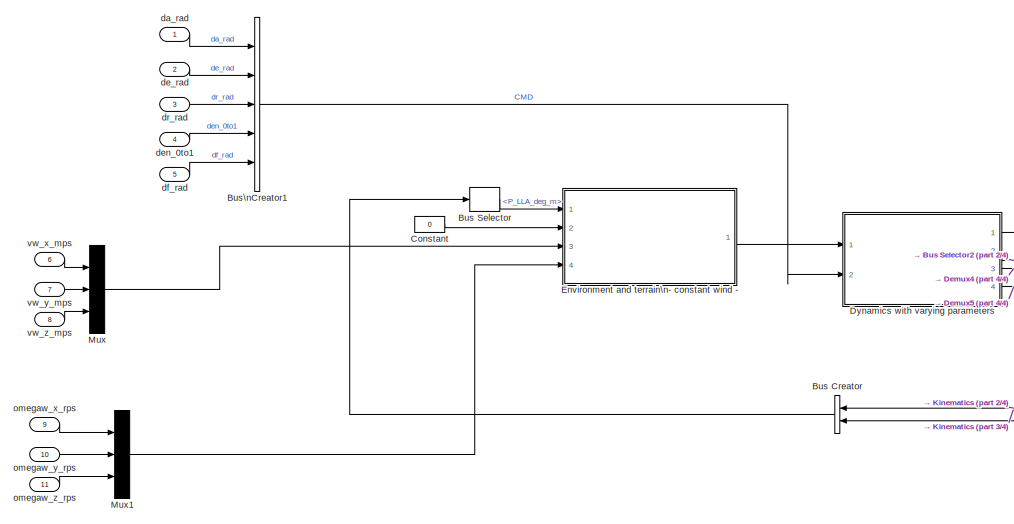
[diagram: root canvas - part 1/4, top left region]
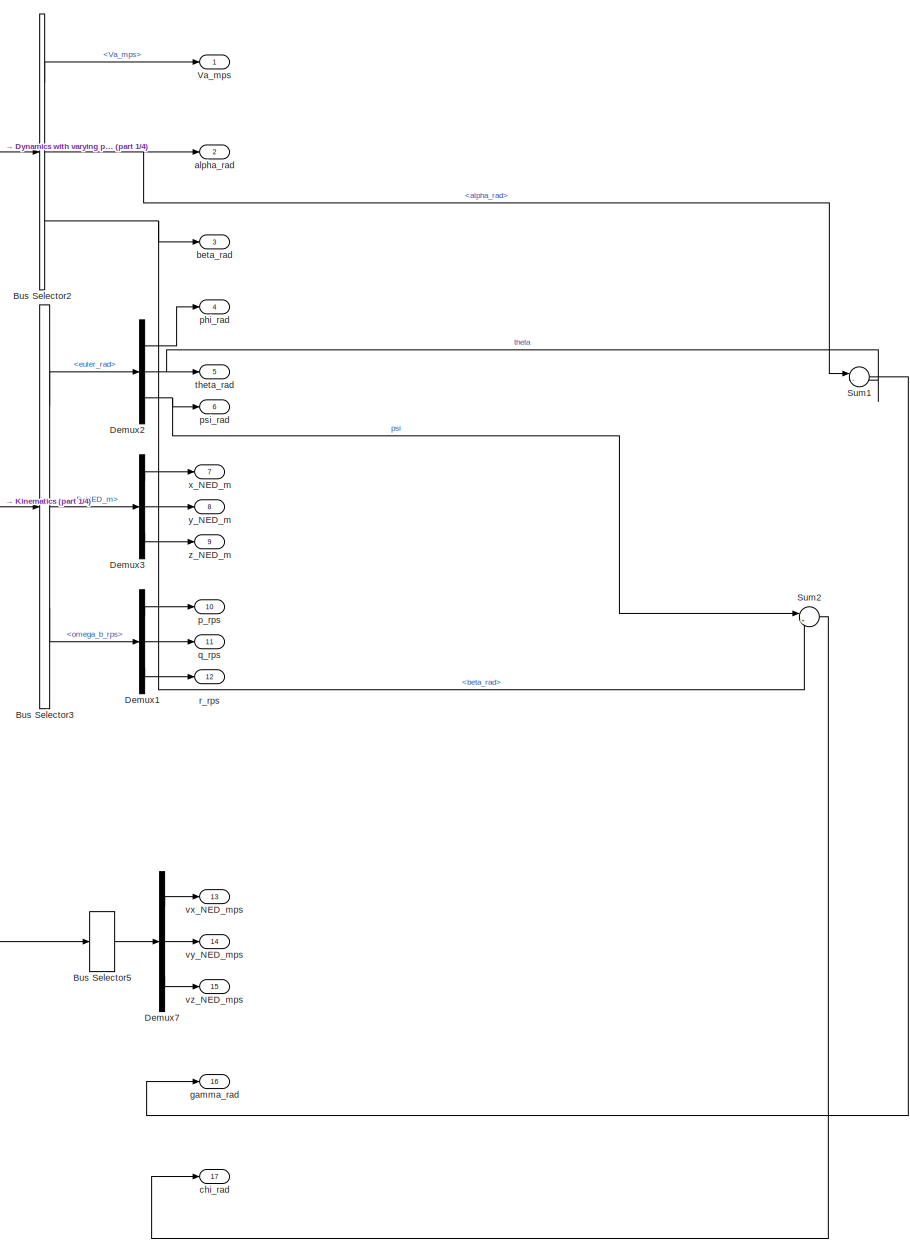
[diagram: root canvas - part 2/4, middle right region]
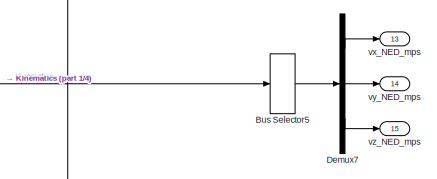
[diagram: root canvas - part 3/4, central region]
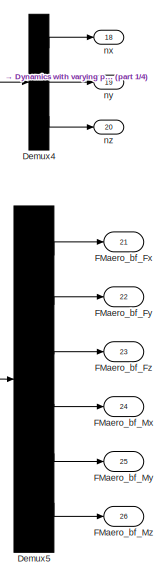
[diagram: root canvas - part 4/4, bottom right region]
MODEL uavsimblockset_trimModel_Cularis_turbulentAtmosphere
KIND model
BLOCK [BusCreator] Bus Creator
  DisplayOption = bar
  InheritFromInputs = on
  Inputs = 2
  Ports = [2, 1]
  SID = 1032
BLOCK [BusSelector] Bus Selector
  OutputSignals = Kinematics.Position.P_LLA_deg_m
  Ports = [1, 1]
  SID = 1057
BLOCK [BusSelector] Bus Selector2
  OutputSignals = Va_mps,alpha_rad,beta_rad
  Ports = [1, 3]
  SID = 1139
BLOCK [BusSelector] Bus Selector3
  OutputSignals = Attitude.euler_rad,Position.P_NED_m,RotationalVelocity.omega_b_rps
  Ports = [1, 3]
  SID = 1140
BLOCK [BusSelector] Bus Selector5
  OutputAsBus = on
  OutputSignals = Velocity.Vground_NED_mps
  Ports = [1, 1]
  SID = 1141
BLOCK [BusCreator] Bus\nCreator1
  DisplayOption = bar
  InheritFromInputs = on
  Inputs = 5
  NonVirtualBus = on
  OutDataTypeStr = Bus: CMD
  Ports = [5, 1]
  SID = 70
BLOCK [Constant] Constant
  SID = 1054
  Value = 0
BLOCK [Demux] Demux1
  DisplayOption = bar
  Outputs = 3
  Ports = [1, 3]
  SID = 1142
BLOCK [Demux] Demux2
  DisplayOption = bar
  Outputs = 3
  Ports = [1, 3]
  SID = 1143
BLOCK [Demux] Demux3
  DisplayOption = bar
  Outputs = 3
  Ports = [1, 3]
  SID = 1144
BLOCK [Demux] Demux4
  DisplayOption = bar
  Outputs = 3
  Ports = [1, 3]
  SID = 1174
BLOCK [Demux] Demux5
  DisplayOption = bar
  Outputs = 6
  Ports = [1, 6]
  SID = 1184
BLOCK [Demux] Demux7
  DisplayOption = bar
  Outputs = 3
  Ports = [1, 3]
  SID = 1145
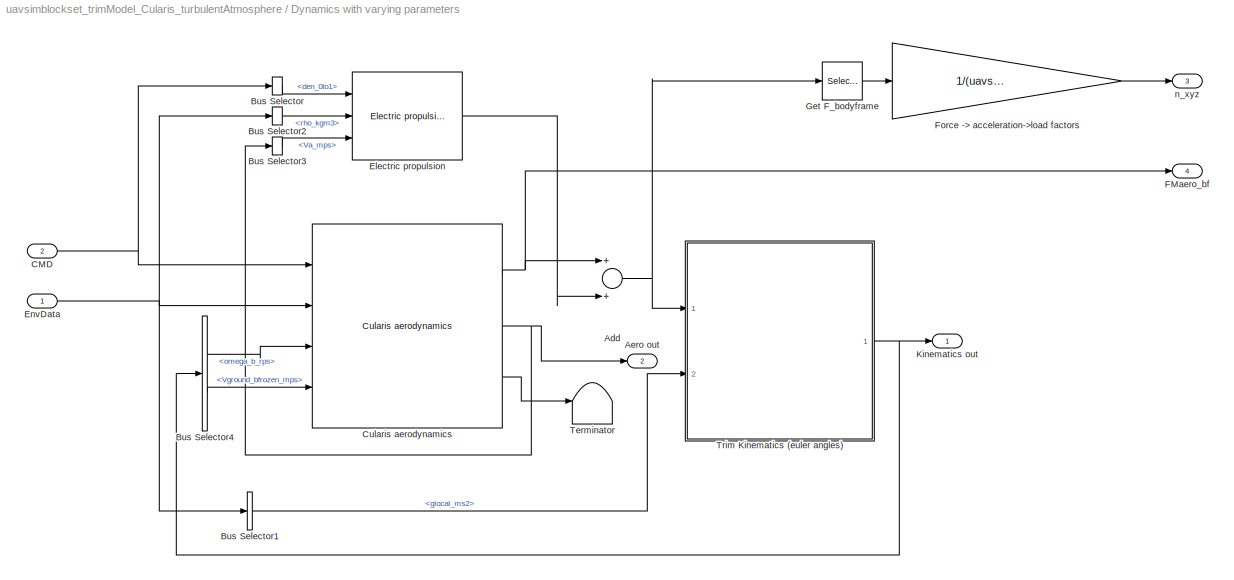
BLOCK [SubSystem] Dynamics with varying parameters
  Ports = [2, 4]
  RequestExecContextInheritance = off
  SID = 1067
  Variant = off
BLOCK [Sum] Dynamics with varying parameters/Add
  InputSameDT = off
  OutDataTypeStr = Inherit: Inherit via internal rule
  Ports = [2, 1]
  SID = 1070
  SaturateOnIntegerOverflow = off
BLOCK [Outport] Dynamics with varying parameters/Aero out
  IconDisplay = Port number
  OutDataTypeStr = Bus: Aero
  Port = 2
  SID = 1077
BLOCK [BusSelector] Dynamics with varying parameters/Bus Selector
  OutputSignals = den_0to1
  Ports = [1, 1]
  SID = 1125
BLOCK [BusSelector] Dynamics with varying parameters/Bus Selector1
  OutputSignals = glocal_ms2
  Ports = [1, 1]
  SID = 1072
BLOCK [BusSelector] Dynamics with varying parameters/Bus Selector2
  OutputSignals = rho_kgm3
  Ports = [1, 1]
  SID = 1126
BLOCK [BusSelector] Dynamics with varying parameters/Bus Selector3
  OutputSignals = Va_mps
  Ports = [1, 1]
  SID = 1127
BLOCK [BusSelector] Dynamics with varying parameters/Bus Selector4
  OutputSignals = RotationalVelocity.omega_b_rps,Velocity.Vground_bfrozen_mps
  Ports = [1, 2]
  SID = 1073
BLOCK [Inport] Dynamics with varying parameters/CMD
  IconDisplay = Port number
  OutDataTypeStr = Bus: CMD
  Port = 2
  SID = 1069
BLOCK [Reference] Dynamics with varying parameters/Cularis aerodynamics  REF=uavsimBlockset_Cularis_Aerandpropulsion/Cularis aerodynamics
  FunctionWithSeparateData = off
  GeneratePreprocessorConditionals = off
  Ports = [4, 3]
  SID = 1123
  ShowPortLabels = FromPortIcon
  SourceBlock = uavsimBlockset_Cularis_Aerandpropulsion/Cularis aerodynamics
  SystemSampleTime = -1
BLOCK [Reference] Dynamics with varying parameters/Electric propulsion  REF=uavsimBlockset_ElectricPropulsion/Electric propulsion
  Ports = [3, 1]
  SID = 1124
  SourceBlock = uavsimBlockset_ElectricPropulsion/Electric propulsion
  mask_C_prop = uavsim.cularis.C_prop
  mask_S_prop = uavsim.cularis.S_prop
  mask_k_motor = uavsim.cularis.k_motor
BLOCK [Inport] Dynamics with varying parameters/EnvData
  IconDisplay = Port number
  OutDataTypeStr = Bus: Environment
  SID = 1068
BLOCK [Outport] Dynamics with varying parameters/FMaero_bf
  IconDisplay = Port number
  Port = 4
  PortDimensions = 6
  SID = 1177
BLOCK [Gain] Dynamics with varying parameters/Force -> acceleration->load factors
  Gain = 1/(uavsim.cularis.mass * 9.81)
  OutDataTypeStr = Inherit: Inherit via internal rule
  ParamDataTypeStr = Inherit: Inherit via internal rule
  SID = 1086
  SaturateOnIntegerOverflow = off
BLOCK [Selector] Dynamics with varying parameters/Get F_bodyframe
  IndexOptions = Index vector (dialog)
  Indices = 1:3
  InputPortWidth = 6
  OutputSizes = 1
  Ports = [1, 1]
  SID = 1087
BLOCK [Outport] Dynamics with varying parameters/Kinematics out
  IconDisplay = Port number
  OutDataTypeStr = Bus: Kinematics
  SID = 1076
BLOCK [Terminator] Dynamics with varying parameters/Terminator
  SID = 1074
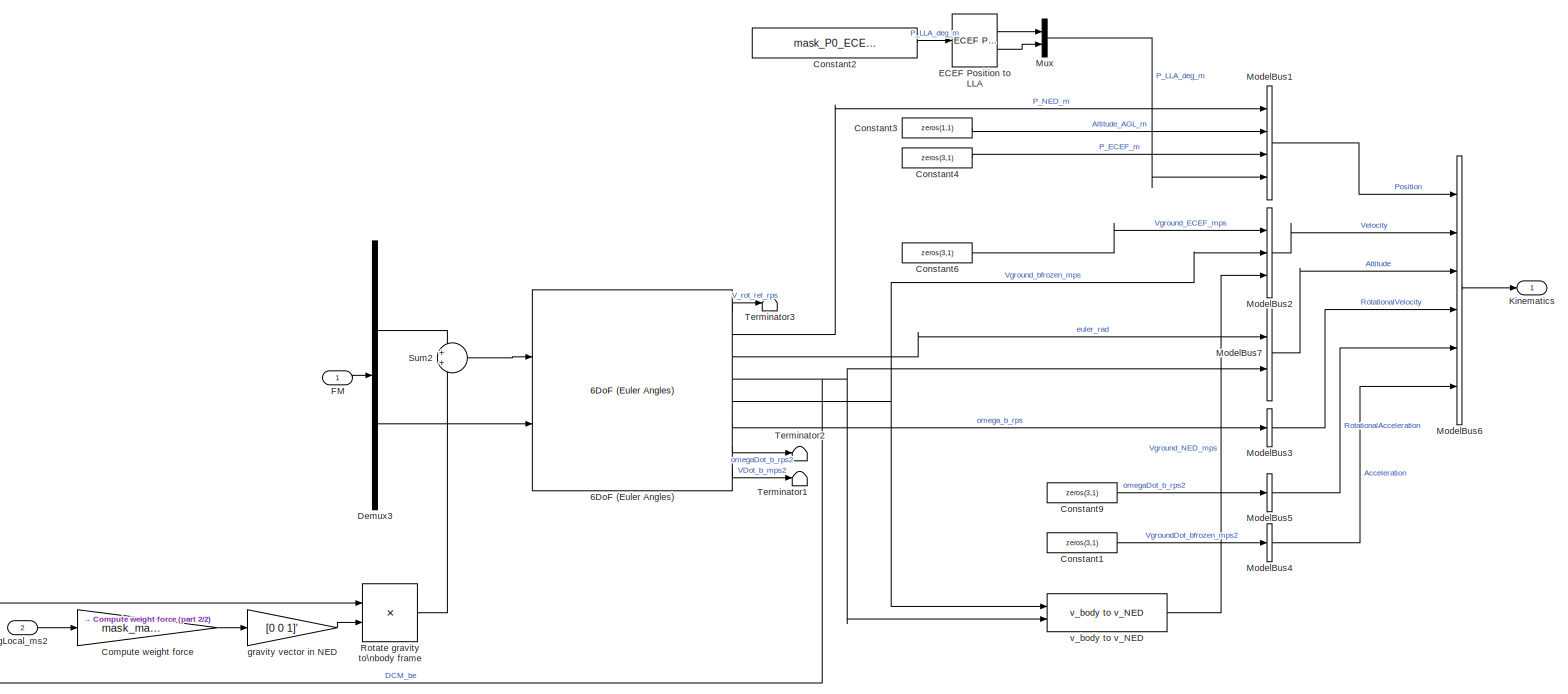
[diagram: Dynamics with varying parameters/Trim Kinematics (euler angles) - part 1/2, most of the canvas]
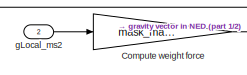
[diagram: Dynamics with varying parameters/Trim Kinematics (euler angles) - part 2/2, bottom left region]
BLOCK [SubSystem] Dynamics with varying parameters/Trim Kinematics (euler angles)
  AncestorBlock = uavsimblockset_TrimKinematics/Trim Kinematics (euler angles)
  Ports = [2, 1]
  RequestExecContextInheritance = off
  SID = 1075
  Variant = off
BLOCK [Reference] Dynamics with varying parameters/Trim Kinematics (euler angles)/6DoF (Euler Angles)  REF=aerolibobsolete/6DoF (Euler Angles)
  Ports = [2, 8]
  SID = 1075:3236
  SourceBlock = aerolibobsolete/6DoF (Euler Angles)
  SourceType = 6DoF EoM (Body Axis)
  Vm_0 = mask_uvw0
  eul_0 = mask_phithetapsi0
  inertia = mask_inertia
  inertia_e = eye(3)
  inertia_f = 2*eye(3)
  k_quat = 1.0
  mass_0 = mask_mass
  mass_e = 0.5
  mass_f = 2.0
  mtype = Fixed
  pm_0 = mask_omega0
  rep = Euler Angles
  units = Metric (MKS)
  xme_0 = mask_P0_ECEF_m
BLOCK [Gain] Dynamics with varying parameters/Trim Kinematics (euler angles)/Compute weight force
  Gain = mask_mass
  OutDataTypeStr = Inherit: Inherit via internal rule
  ParamDataTypeStr = Inherit: Inherit via internal rule
  SID = 1075:3260
  SaturateOnIntegerOverflow = off
BLOCK [Constant] Dynamics with varying parameters/Trim Kinematics (euler angles)/Constant1
  SID = 1075:3237
  SampleTime = -1
  Value = zeros(3,1)
BLOCK [Constant] Dynamics with varying parameters/Trim Kinematics (euler angles)/Constant2
  SID = 1075:3238
  SampleTime = -1
  Value = mask_P0_ECEF_m
BLOCK [Constant] Dynamics with varying parameters/Trim Kinematics (euler angles)/Constant3
  SID = 1075:3239
  SampleTime = -1
  Value = zeros(1,1)
BLOCK [Constant] Dynamics with varying parameters/Trim Kinematics (euler angles)/Constant4
  SID = 1075:3240
  SampleTime = -1
  Value = zeros(3,1)
BLOCK [Constant] Dynamics with varying parameters/Trim Kinematics (euler angles)/Constant6
  SID = 1075:3242
  SampleTime = -1
  Value = zeros(3,1)
BLOCK [Constant] Dynamics with varying parameters/Trim Kinematics (euler angles)/Constant9
  SID = 1075:3244
  SampleTime = -1
  Value = zeros(3,1)
BLOCK [Demux] Dynamics with varying parameters/Trim Kinematics (euler angles)/Demux3
  Outputs = [3,3]
  Ports = [1, 2]
  SID = 1075:3245
BLOCK [Reference] Dynamics with varying parameters/Trim Kinematics (euler angles)/ECEF Position to LLA  REF=aerolibtransform2/ECEF Position to LLA
  F = 1/298.257223563
  Ports = [1, 2]
  R = 6378137
  SID = 1075:3905
  SourceBlock = aerolibtransform2/ECEF Position to LLA
  SourceType = ECEF to LLA
  ptype = Earth (WGS84)
  units = Metric (MKS)
BLOCK [Inport] Dynamics with varying parameters/Trim Kinematics (euler angles)/FM
  IconDisplay = Port number
  SID = 1075:3234
BLOCK [Outport] Dynamics with varying parameters/Trim Kinematics (euler angles)/Kinematics
  IconDisplay = Port number
  OutDataTypeStr = Bus: Kinematics
  SID = 1075:3258
BLOCK [BusCreator] Dynamics with varying parameters/Trim Kinematics (euler angles)/ModelBus1
  DisplayOption = bar
  InheritFromInputs = on
  Inputs = 'P_NED_m','Altitude_AGL_m','P_ECEF_m','P_LLA_deg_m'
  NonVirtualBus = on
  OutDataTypeStr = Bus: Position
  Ports = [4, 1]
  SID = 1075:3246
BLOCK [BusCreator] Dynamics with varying parameters/Trim Kinematics (euler angles)/ModelBus2
  DisplayOption = bar
  InheritFromInputs = on
  Inputs = 3
  NonVirtualBus = on
  OutDataTypeStr = Bus: Velocity
  Ports = [3, 1]
  SID = 1075:3247
BLOCK [BusCreator] Dynamics with varying parameters/Trim Kinematics (euler angles)/ModelBus3
  DisplayOption = bar
  InheritFromInputs = on
  Inputs = 'omega_b_rps'
  NonVirtualBus = on
  OutDataTypeStr = Bus: RotationalVelocity
  Ports = [1, 1]
  SID = 1075:3248
BLOCK [BusCreator] Dynamics with varying parameters/Trim Kinematics (euler angles)/ModelBus4
  DisplayOption = bar
  InheritFromInputs = on
  Inputs = 1
  NonVirtualBus = on
  OutDataTypeStr = Bus: Acceleration
  Ports = [1, 1]
  SID = 1075:3249
BLOCK [BusCreator] Dynamics with varying parameters/Trim Kinematics (euler angles)/ModelBus5
  DisplayOption = bar
  InheritFromInputs = on
  Inputs = 'omegaDot_b_rps2'
  NonVirtualBus = on
  OutDataTypeStr = Bus: RotationalAcceleration
  Ports = [1, 1]
  SID = 1075:3250
BLOCK [BusCreator] Dynamics with varying parameters/Trim Kinematics (euler angles)/ModelBus6
  DisplayOption = bar
  InheritFromInputs = on
  Inputs = 6
  OutDataTypeStr = Bus: Kinematics
  Ports = [6, 1]
  SID = 1075:3251
BLOCK [BusCreator] Dynamics with varying parameters/Trim Kinematics (euler angles)/ModelBus7
  DisplayOption = bar
  InheritFromInputs = on
  Inputs = 'euler_rad','DCM_be'
  NonVirtualBus = on
  OutDataTypeStr = Bus: Attitude
  Ports = [2, 1]
  SID = 1075:3252
BLOCK [Mux] Dynamics with varying parameters/Trim Kinematics (euler angles)/Mux
  DisplayOption = bar
  Inputs = 2
  Ports = [2, 1]
  SID = 1075:3906
BLOCK [Product] Dynamics with varying parameters/Trim Kinematics (euler angles)/Rotate gravity to\nbody frame
  InputSameDT = off
  Multiplication = Matrix(*)
  OutDataTypeStr = Inherit: Inherit via internal rule
  Ports = [2, 1]
  RndMeth = Floor
  SID = 1075:3261
  SaturateOnIntegerOverflow = off
BLOCK [Sum] Dynamics with varying parameters/Trim Kinematics (euler angles)/Sum2
  IconShape = round
  Ports = [2, 1]
  SID = 1075:3253
BLOCK [Terminator] Dynamics with varying parameters/Trim Kinematics (euler angles)/Terminator1
  SID = 1075:3254
BLOCK [Terminator] Dynamics with varying parameters/Trim Kinematics (euler angles)/Terminator2
  SID = 1075:3255
BLOCK [Terminator] Dynamics with varying parameters/Trim Kinematics (euler angles)/Terminator3
  SID = 1075:3256
BLOCK [Inport] Dynamics with varying parameters/Trim Kinematics (euler angles)/gLocal_ms2
  IconDisplay = Port number
  Port = 2
  SID = 1075:3235
BLOCK [Gain] Dynamics with varying parameters/Trim Kinematics (euler angles)/gravity vector in NED
  Gain = [0 0 1]'
  OutDataTypeStr = Inherit: Inherit via internal rule
  ParamDataTypeStr = Inherit: Inherit via internal rule
  SID = 1075:3262
  SaturateOnIntegerOverflow = off
BLOCK [Reference] Dynamics with varying parameters/Trim Kinematics (euler angles)/v_body to v_NED  REF=uavsimblockset_vbody2vNED/v_body to v_NED
  Ports = [2, 1]
  SID = 1075:3257
  SourceBlock = uavsimblockset_vbody2vNED/v_body to v_NED
  SourceType = SubSystem
BLOCK [Outport] Dynamics with varying parameters/n_xyz
  IconDisplay = Port number
  Port = 3
  PortDimensions = 3
  SID = 1088
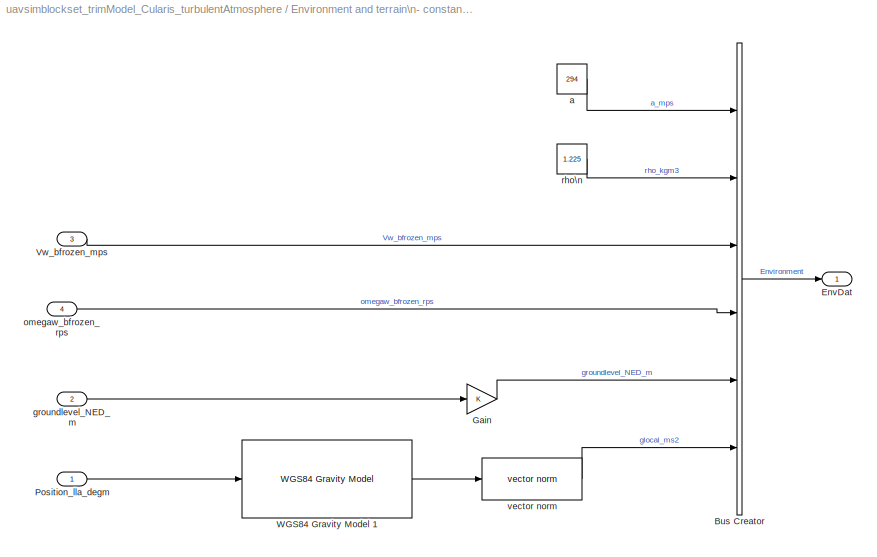
BLOCK [SubSystem] Environment and terrain\n- constant wind -
  AncestorBlock = uavsimBlockset_Environment_calmAtmosphere/Environment and terrain\n- calm atmosphere -
  Ports = [4, 1]
  RequestExecContextInheritance = off
  SID = 1058
  Variant = off
BLOCK [BusCreator] Environment and terrain\n- constant wind -/Bus Creator
  DisplayOption = bar
  InheritFromInputs = on
  Inputs = 6
  NonVirtualBus = on
  OutDataTypeStr = Bus: Environment
  Ports = [6, 1]
  SID = 1058:1771
BLOCK [Outport] Environment and terrain\n- constant wind -/EnvDat
  IconDisplay = Port number
  OutDataTypeStr = Bus: Environment
  SID = 1058:1793
BLOCK [Gain] Environment and terrain\n- constant wind -/Gain
  OutDataTypeStr = Inherit: Inherit via internal rule
  ParamDataTypeStr = Inherit: Inherit via internal rule
  SID = 1058:4461
  SaturateOnIntegerOverflow = off
BLOCK [Inport] Environment and terrain\n- constant wind -/Position_lla_degm
  IconDisplay = Port number
  SID = 1058:1809
BLOCK [Inport] Environment and terrain\n- constant wind -/Vw_bfrozen_mps
  IconDisplay = Port number
  Port = 3
  SID = 1058:4462
BLOCK [Reference] Environment and terrain\n- constant wind -/WGS84 Gravity Model 1  REF=aerolibgravity2/WGS84 Gravity Model 
  Ports = [1, 1]
  SID = 1058:1784
  SourceBlock = aerolibgravity2/WGS84 Gravity Model
  SourceType = WGS84 Gravity Model 3D
  action = Warning
  day = 10
  jd_loc = off
  model = WGS84 Taylor Series
  month = October
  no_atmos = on
  no_centrifugal = on
  precessing = on
  units = Metric (MKS)
  year = 2004
BLOCK [Constant] Environment and terrain\n- constant wind -/a
  SID = 1058:1785
  Value = 294
BLOCK [Inport] Environment and terrain\n- constant wind -/groundlevel_NED_m
  IconDisplay = Port number
  Port = 2
  SID = 1058:4018
BLOCK [Inport] Environment and terrain\n- constant wind -/omegaw_bfrozen_rps
  IconDisplay = Port number
  Port = 4
  SID = 1058:4463
BLOCK [Constant] Environment and terrain\n- constant wind -/rho\n
  SID = 1058:1789
  Value = 1.225
BLOCK [Reference] Environment and terrain\n- constant wind -/vector norm  REF=uavsimBlockset_VectorNorm/vector norm
  Ports = [1, 1]
  SID = 1058:1858
  SourceBlock = uavsimBlockset_VectorNorm/vector norm
  SourceType = SubSystem
BLOCK [Outport] FMaero_bf_Fx
  IconDisplay = Port number
  Port = 21
  PortDimensions = 1
  SID = 1178
BLOCK [Outport] FMaero_bf_Fy
  IconDisplay = Port number
  Port = 22
  PortDimensions = 1
  SID = 1179
BLOCK [Outport] FMaero_bf_Fz
  IconDisplay = Port number
  Port = 23
  PortDimensions = 1
  SID = 1180
BLOCK [Outport] FMaero_bf_Mx
  IconDisplay = Port number
  Port = 24
  PortDimensions = 1
  SID = 1181
BLOCK [Outport] FMaero_bf_My
  IconDisplay = Port number
  Port = 25
  PortDimensions = 1
  SID = 1182
BLOCK [Outport] FMaero_bf_Mz
  IconDisplay = Port number
  Port = 26
  PortDimensions = 1
  SID = 1183
BLOCK [Mux] Mux
  DisplayOption = bar
  Inputs = 3
  Ports = [3, 1]
  SID = 1137
BLOCK [Mux] Mux1
  DisplayOption = bar
  Inputs = 3
  Ports = [3, 1]
  SID = 1138
BLOCK [Sum] Sum1
  IconShape = round
  InputSameDT = off
  Inputs = |-+
  OutDataTypeStr = Inherit: Inherit via internal rule
  Ports = [2, 1]
  SID = 1146
  SaturateOnIntegerOverflow = off
BLOCK [Sum] Sum2
  IconShape = round
  InputSameDT = off
  Inputs = |++
  OutDataTypeStr = Inherit: Inherit via internal rule
  Ports = [2, 1]
  SID = 1147
  SaturateOnIntegerOverflow = off
BLOCK [Outport] Va_mps
  IconDisplay = Port number
  SID = 1148
BLOCK [Outport] alpha_rad
  IconDisplay = Port number
  Port = 2
  SID = 1149
BLOCK [Outport] beta_rad
  IconDisplay = Port number
  Port = 3
  SID = 1150
BLOCK [Outport] chi_rad
  IconDisplay = Port number
  Port = 17
  SID = 1165
BLOCK [Inport] da_rad
  IconDisplay = Port number
  SID = 82
BLOCK [Inport] de_rad
  IconDisplay = Port number
  Port = 2
  SID = 83
BLOCK [Inport] den_0to1
  IconDisplay = Port number
  Port = 4
  SID = 85
BLOCK [Inport] df_rad
  IconDisplay = Port number
  Port = 5
  SID = 1028
BLOCK [Inport] dr_rad
  IconDisplay = Port number
  Port = 3
  SID = 84
BLOCK [Outport] gamma_rad
  IconDisplay = Port number
  Port = 16
  SID = 1164
BLOCK [Outport] nx
  IconDisplay = Port number
  Port = 18
  SID = 1169
BLOCK [Outport] ny
  IconDisplay = Port number
  Port = 19
  SID = 1172
BLOCK [Outport] nz
  IconDisplay = Port number
  Port = 20
  SID = 1173
BLOCK [Inport] omegaw_x_rps
  IconDisplay = Port number
  Port = 9
  PortDimensions = 1
  SID = 1134
BLOCK [Inport] omegaw_y_rps
  IconDisplay = Port number
  Port = 10
  PortDimensions = 1
  SID = 1135
BLOCK [Inport] omegaw_z_rps
  IconDisplay = Port number
  Port = 11
  PortDimensions = 1
  SID = 1136
BLOCK [Outport] p_rps
  IconDisplay = Port number
  Port = 10
  SID = 1157
BLOCK [Outport] phi_rad
  IconDisplay = Port number
  Port = 4
  SID = 1151
BLOCK [Outport] psi_rad
  IconDisplay = Port number
  Port = 6
  SID = 1153
BLOCK [Outport] q_rps
  IconDisplay = Port number
  Port = 11
  SID = 1158
BLOCK [Outport] r_rps
  IconDisplay = Port number
  Port = 12
  SID = 1159
BLOCK [Outport] theta_rad
  IconDisplay = Port number
  Port = 5
  SID = 1152
BLOCK [Inport] vw_x_mps
  IconDisplay = Port number
  Port = 6
  PortDimensions = 1
  SID = 1131
BLOCK [Inport] vw_y_mps
  IconDisplay = Port number
  Port = 7
  PortDimensions = 1
  SID = 1132
BLOCK [Inport] vw_z_mps
  IconDisplay = Port number
  Port = 8
  PortDimensions = 1
  SID = 1133
BLOCK [Outport] vx_NED_mps
  IconDisplay = Port number
  Port = 13
  SID = 1161
BLOCK [Outport] vy_NED_mps
  IconDisplay = Port number
  Port = 14
  SID = 1162
BLOCK [Outport] vz_NED_mps
  IconDisplay = Port number
  Port = 15
  SID = 1163
BLOCK [Outport] x_NED_m
  IconDisplay = Port number
  Port = 7
  SID = 1154
BLOCK [Outport] y_NED_m
  IconDisplay = Port number
  Port = 8
  SID = 1155
BLOCK [Outport] z_NED_m
  IconDisplay = Port number
  Port = 9
  SID = 1156
LINE Bus Creator:1 -> Bus Selector:1
LINE Bus Selector2:1 -> Va_mps:1
NET Bus Selector2:2 -> Sum1:1, alpha_rad:1
NET Bus Selector2:3 -> Sum2:2, beta_rad:1
LINE Bus Selector3:1 -> Demux2:1
LINE Bus Selector3:2 -> Demux3:1
LINE Bus Selector3:3 -> Demux1:1
LINE Bus Selector5:1 -> Demux7:1
LINE Bus Selector:1 -> Environment and terrain\n- constant wind -:1
LINE Bus\nCreator1:1 -> Dynamics with varying parameters:2
LINE Constant:1 -> Environment and terrain\n- constant wind -:2
LINE Demux1:1 -> p_rps:1
LINE Demux1:2 -> q_rps:1
LINE Demux1:3 -> r_rps:1
LINE Demux2:1 -> phi_rad:1
NET Demux2:2 -> Sum1:2, theta_rad:1
NET Demux2:3 -> Sum2:1, psi_rad:1
LINE Demux3:1 -> x_NED_m:1
LINE Demux3:2 -> y_NED_m:1
LINE Demux3:3 -> z_NED_m:1
LINE Demux4:1 -> nx:1
LINE Demux4:2 -> ny:1
LINE Demux4:3 -> nz:1
LINE Demux5:1 -> FMaero_bf_Fx:1
LINE Demux5:2 -> FMaero_bf_Fy:1
LINE Demux5:3 -> FMaero_bf_Fz:1
LINE Demux5:4 -> FMaero_bf_Mx:1
LINE Demux5:5 -> FMaero_bf_My:1
LINE Demux5:6 -> FMaero_bf_Mz:1
LINE Demux7:1 -> vx_NED_mps:1
LINE Demux7:2 -> vy_NED_mps:1
LINE Demux7:3 -> vz_NED_mps:1
NET Dynamics with varying parameters/Add:1 -> Dynamics with varying parameters/Get F_bodyframe:1, Dynamics with varying parameters/Trim Kinematics (euler angles):1
LINE Dynamics with varying parameters/Bus Selector1:1 -> Dynamics with varying parameters/Trim Kinematics (euler angles):2
LINE Dynamics with varying parameters/Bus Selector2:1 -> Dynamics with varying parameters/Electric propulsion:2
LINE Dynamics with varying parameters/Bus Selector3:1 -> Dynamics with varying parameters/Electric propulsion:3
LINE Dynamics with varying parameters/Bus Selector4:1 -> Dynamics with varying parameters/Cularis aerodynamics:3
LINE Dynamics with varying parameters/Bus Selector4:2 -> Dynamics with varying parameters/Cularis aerodynamics:4
LINE Dynamics with varying parameters/Bus Selector:1 -> Dynamics with varying parameters/Electric propulsion:1
NET Dynamics with varying parameters/CMD:1 -> Dynamics with varying parameters/Bus Selector:1, Dynamics with varying parameters/Cularis aerodynamics:1
NET Dynamics with varying parameters/Cularis aerodynamics:1 -> Dynamics with varying parameters/Add:1, Dynamics with varying parameters/FMaero_bf:1
NET Dynamics with varying parameters/Cularis aerodynamics:2 -> Dynamics with varying parameters/Aero out:1, Dynamics with varying parameters/Bus Selector3:1
LINE Dynamics with varying parameters/Cularis aerodynamics:3 -> Dynamics with varying parameters/Terminator:1
LINE Dynamics with varying parameters/Electric propulsion:1 -> Dynamics with varying parameters/Add:2
NET Dynamics with varying parameters/EnvData:1 -> Dynamics with varying parameters/Bus Selector1:1, Dynamics with varying parameters/Bus Selector2:1, Dynamics with varying parameters/Cularis aerodynamics:2
LINE Dynamics with varying parameters/Force -> acceleration->load factors:1 -> Dynamics with varying parameters/n_xyz:1
LINE Dynamics with varying parameters/Get F_bodyframe:1 -> Dynamics with varying parameters/Force -> acceleration->load factors:1
LINE Dynamics with varying parameters/Trim Kinematics (euler angles)/6DoF (Euler Angles):1 -> Dynamics with varying parameters/Trim Kinematics (euler angles)/Terminator3:1
LINE Dynamics with varying parameters/Trim Kinematics (euler angles)/6DoF (Euler Angles):2 -> Dynamics with varying parameters/Trim Kinematics (euler angles)/ModelBus1:1
LINE Dynamics with varying parameters/Trim Kinematics (euler angles)/6DoF (Euler Angles):3 -> Dynamics with varying parameters/Trim Kinematics (euler angles)/ModelBus7:1
NET Dynamics with varying parameters/Trim Kinematics (euler angles)/6DoF (Euler Angles):4 -> Dynamics with varying parameters/Trim Kinematics (euler angles)/ModelBus7:2, Dynamics with varying parameters/Trim Kinematics (euler angles)/Rotate gravity to\nbody frame:1, Dynamics with varying parameters/Trim Kinematics (euler angles)/v_body to v_NED:2
NET Dynamics with varying parameters/Trim Kinematics (euler angles)/6DoF (Euler Angles):5 -> Dynamics with varying parameters/Trim Kinematics (euler angles)/ModelBus2:2, Dynamics with varying parameters/Trim Kinematics (euler angles)/v_body to v_NED:1
LINE Dynamics with varying parameters/Trim Kinematics (euler angles)/6DoF (Euler Angles):6 -> Dynamics with varying parameters/Trim Kinematics (euler angles)/ModelBus3:1
LINE Dynamics with varying parameters/Trim Kinematics (euler angles)/6DoF (Euler Angles):7 -> Dynamics with varying parameters/Trim Kinematics (euler angles)/Terminator2:1
LINE Dynamics with varying parameters/Trim Kinematics (euler angles)/6DoF (Euler Angles):8 -> Dynamics with varying parameters/Trim Kinematics (euler angles)/Terminator1:1
LINE Dynamics with varying parameters/Trim Kinematics (euler angles)/Compute weight force:1 -> Dynamics with varying parameters/Trim Kinematics (euler angles)/gravity vector in NED:1
LINE Dynamics with varying parameters/Trim Kinematics (euler angles)/Constant1:1 -> Dynamics with varying parameters/Trim Kinematics (euler angles)/ModelBus4:1
LINE Dynamics with varying parameters/Trim Kinematics (euler angles)/Constant2:1 -> Dynamics with varying parameters/Trim Kinematics (euler angles)/ECEF Position to LLA:1
LINE Dynamics with varying parameters/Trim Kinematics (euler angles)/Constant3:1 -> Dynamics with varying parameters/Trim Kinematics (euler angles)/ModelBus1:2
LINE Dynamics with varying parameters/Trim Kinematics (euler angles)/Constant4:1 -> Dynamics with varying parameters/Trim Kinematics (euler angles)/ModelBus1:3
LINE Dynamics with varying parameters/Trim Kinematics (euler angles)/Constant6:1 -> Dynamics with varying parameters/Trim Kinematics (euler angles)/ModelBus2:1
LINE Dynamics with varying parameters/Trim Kinematics (euler angles)/Constant9:1 -> Dynamics with varying parameters/Trim Kinematics (euler angles)/ModelBus5:1
LINE Dynamics with varying parameters/Trim Kinematics (euler angles)/Demux3:1 -> Dynamics with varying parameters/Trim Kinematics (euler angles)/Sum2:1
LINE Dynamics with varying parameters/Trim Kinematics (euler angles)/Demux3:2 -> Dynamics with varying parameters/Trim Kinematics (euler angles)/6DoF (Euler Angles):2
LINE Dynamics with varying parameters/Trim Kinematics (euler angles)/ECEF Position to LLA:1 -> Dynamics with varying parameters/Trim Kinematics (euler angles)/Mux:1
LINE Dynamics with varying parameters/Trim Kinematics (euler angles)/ECEF Position to LLA:2 -> Dynamics with varying parameters/Trim Kinematics (euler angles)/Mux:2
LINE Dynamics with varying parameters/Trim Kinematics (euler angles)/FM:1 -> Dynamics with varying parameters/Trim Kinematics (euler angles)/Demux3:1
LINE Dynamics with varying parameters/Trim Kinematics (euler angles)/ModelBus1:1 -> Dynamics with varying parameters/Trim Kinematics (euler angles)/ModelBus6:1
LINE Dynamics with varying parameters/Trim Kinematics (euler angles)/ModelBus2:1 -> Dynamics with varying parameters/Trim Kinematics (euler angles)/ModelBus6:2
LINE Dynamics with varying parameters/Trim Kinematics (euler angles)/ModelBus3:1 -> Dynamics with varying parameters/Trim Kinematics (euler angles)/ModelBus6:4
LINE Dynamics with varying parameters/Trim Kinematics (euler angles)/ModelBus4:1 -> Dynamics with varying parameters/Trim Kinematics (euler angles)/ModelBus6:6
LINE Dynamics with varying parameters/Trim Kinematics (euler angles)/ModelBus5:1 -> Dynamics with varying parameters/Trim Kinematics (euler angles)/ModelBus6:5
LINE Dynamics with varying parameters/Trim Kinematics (euler angles)/ModelBus6:1 -> Dynamics with varying parameters/Trim Kinematics (euler angles)/Kinematics:1
LINE Dynamics with varying parameters/Trim Kinematics (euler angles)/ModelBus7:1 -> Dynamics with varying parameters/Trim Kinematics (euler angles)/ModelBus6:3
LINE Dynamics with varying parameters/Trim Kinematics (euler angles)/Mux:1 -> Dynamics with varying parameters/Trim Kinematics (euler angles)/ModelBus1:4
LINE Dynamics with varying parameters/Trim Kinematics (euler angles)/Rotate gravity to\nbody frame:1 -> Dynamics with varying parameters/Trim Kinematics (euler angles)/Sum2:2
LINE Dynamics with varying parameters/Trim Kinematics (euler angles)/Sum2:1 -> Dynamics with varying parameters/Trim Kinematics (euler angles)/6DoF (Euler Angles):1
LINE Dynamics with varying parameters/Trim Kinematics (euler angles)/gLocal_ms2:1 -> Dynamics with varying parameters/Trim Kinematics (euler angles)/Compute weight force:1
LINE Dynamics with varying parameters/Trim Kinematics (euler angles)/gravity vector in NED:1 -> Dynamics with varying parameters/Trim Kinematics (euler angles)/Rotate gravity to\nbody frame:2
LINE Dynamics with varying parameters/Trim Kinematics (euler angles)/v_body to v_NED:1 -> Dynamics with varying parameters/Trim Kinematics (euler angles)/ModelBus2:3
NET Dynamics with varying parameters/Trim Kinematics (euler angles):1 -> Dynamics with varying parameters/Bus Selector4:1, Dynamics with varying parameters/Kinematics out:1
NET Dynamics with varying parameters:1 -> Bus Creator:1, Bus Selector3:1, Bus Selector5:1
NET Dynamics with varying parameters:2 -> Bus Creator:2, Bus Selector2:1
LINE Dynamics with varying parameters:3 -> Demux4:1
LINE Dynamics with varying parameters:4 -> Demux5:1
LINE Environment and terrain\n- constant wind -/Bus Creator:1 -> Environment and terrain\n- constant wind -/EnvDat:1
LINE Environment and terrain\n- constant wind -/Gain:1 -> Environment and terrain\n- constant wind -/Bus Creator:5
LINE Environment and terrain\n- constant wind -/Position_lla_degm:1 -> Environment and terrain\n- constant wind -/WGS84 Gravity Model 1:1
LINE Environment and terrain\n- constant wind -/Vw_bfrozen_mps:1 -> Environment and terrain\n- constant wind -/Bus Creator:3
LINE Environment and terrain\n- constant wind -/WGS84 Gravity Model 1:1 -> Environment and terrain\n- constant wind -/vector norm:1
LINE Environment and terrain\n- constant wind -/a:1 -> Environment and terrain\n- constant wind -/Bus Creator:1
LINE Environment and terrain\n- constant wind -/groundlevel_NED_m:1 -> Environment and terrain\n- constant wind -/Gain:1
LINE Environment and terrain\n- constant wind -/omegaw_bfrozen_rps:1 -> Environment and terrain\n- constant wind -/Bus Creator:4
LINE Environment and terrain\n- constant wind -/rho\n:1 -> Environment and terrain\n- constant wind -/Bus Creator:2
LINE Environment and terrain\n- constant wind -/vector norm:1 -> Environment and terrain\n- constant wind -/Bus Creator:6
LINE Environment and terrain\n- constant wind -:1 -> Dynamics with varying parameters:1
LINE Mux1:1 -> Environment and terrain\n- constant wind -:4
LINE Mux:1 -> Environment and terrain\n- constant wind -:3
LINE Sum1:1 -> gamma_rad:1
LINE Sum2:1 -> chi_rad:1
LINE da_rad:1 -> Bus\nCreator1:1
LINE de_rad:1 -> Bus\nCreator1:2
LINE den_0to1:1 -> Bus\nCreator1:4
LINE df_rad:1 -> Bus\nCreator1:5
LINE dr_rad:1 -> Bus\nCreator1:3
LINE omegaw_x_rps:1 -> Mux1:1
LINE omegaw_y_rps:1 -> Mux1:2
LINE omegaw_z_rps:1 -> Mux1:3
LINE vw_x_mps:1 -> Mux:1
LINE vw_y_mps:1 -> Mux:2
LINE vw_z_mps:1 -> Mux:3
note: NET lines group one-source signal fan-out (src -> all destinations, sorted); 1:1 wires keep LINE
